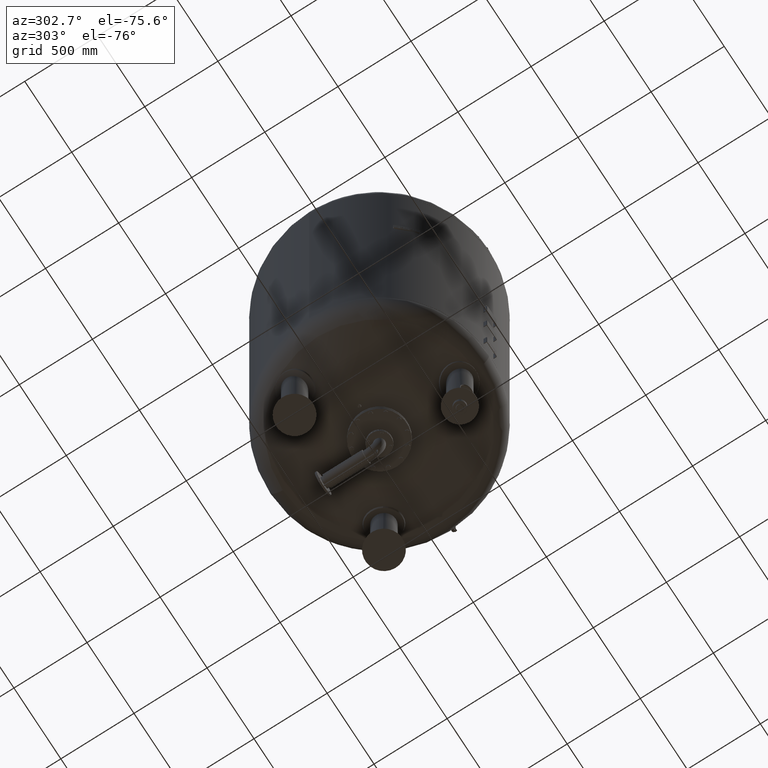
[diagram: clean part render]
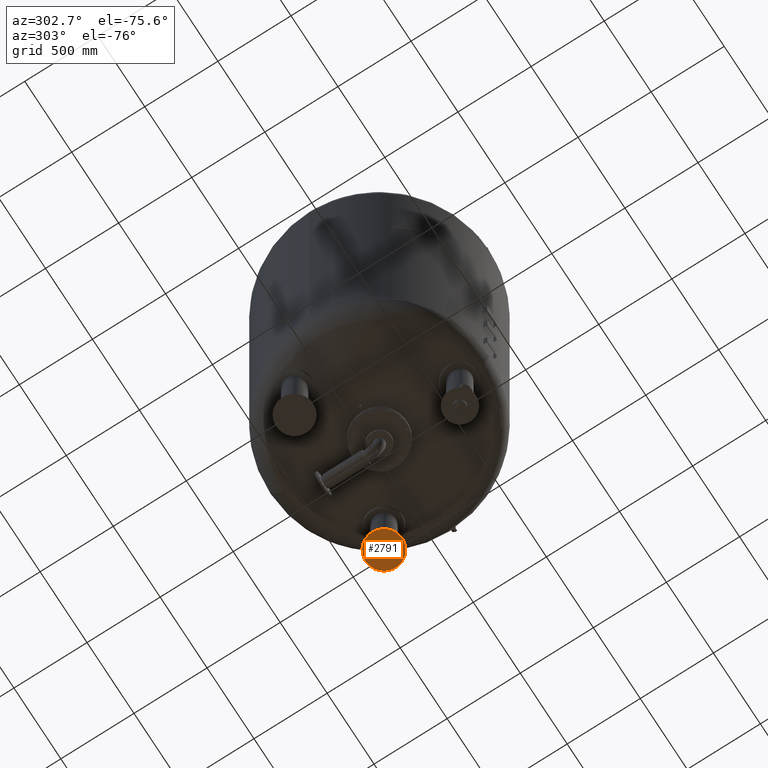
[diagram: same view with one face highlighted and labeled with its STEP entity id]
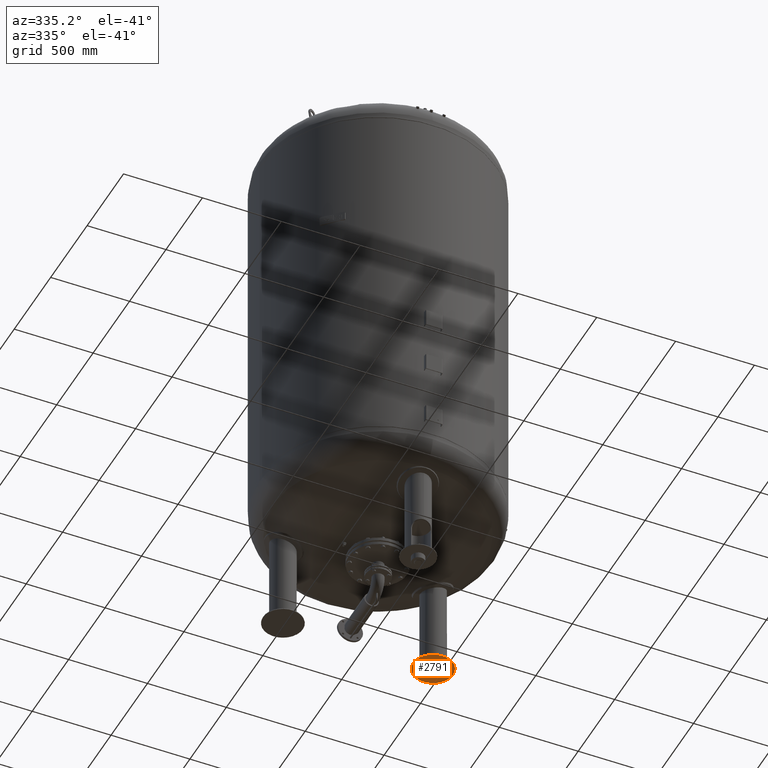
[diagram: same view with one face highlighted and labeled with its STEP entity id]
A machine part, auxiliary view. The second image highlights one B-rep face of the part: STEP entity #2791.
A second angle (auxiliary view) of the same face is appended — the face is thin or edge-on in the first view.
In plain terms, the highlighted spherical surface has radius 570 mm.
Its self-contained STEP definition (entity closure, byte-faithful):
#2279=CARTESIAN_POINT('',(585.702740850056100,338.155635094881400,14.171372612881115));
#2280=VERTEX_POINT('',#2279);
#2289=CARTESIAN_POINT('',(366.925203312826450,211.844364905118480,14.171372612881109));
#2290=VERTEX_POINT('',#2289);
#2291=CARTESIAN_POINT('',(476.313972081441250,274.999999999999940,14.171372612881115));
#2292=DIRECTION('',(0.0,0.0,-1.0));
#2293=DIRECTION('',(0.866025403784439,0.500000000000000,0.0));
#2294=AXIS2_PLACEMENT_3D('',#2291,#2292,#2293);
#2295=CIRCLE('',#2294,126.311270189762990);
#2296=EDGE_CURVE('',#2290,#2280,#2295,.T.);
#2772=CARTESIAN_POINT('',(476.313972081441250,274.999999999999940,14.171372612881115));
#2773=DIRECTION('',(0.0,0.0,-1.0));
#2774=DIRECTION('',(0.866025403784439,0.500000000000000,0.0));
#2775=AXIS2_PLACEMENT_3D('',#2772,#2773,#2774);
#2776=CIRCLE('',#2775,126.311270189762990);
#2777=EDGE_CURVE('',#2280,#2290,#2776,.T.);
#2782=CARTESIAN_POINT('',(476.313972081441310,274.999999999999830,570.0));
#2783=DIRECTION('',(0.500000000000000,-0.866025403784439,-1.836970E-016));
#2784=DIRECTION('',(0.866025403784439,0.500000000000000,0.0));
#2785=AXIS2_PLACEMENT_3D('',#2782,#2783,#2784);
#2786=SPHERICAL_SURFACE('',#2785,570.0);
#2787=ORIENTED_EDGE('',*,*,#2777,.T.);
#2788=ORIENTED_EDGE('',*,*,#2296,.T.);
#2789=EDGE_LOOP('',(#2787,#2788));
#2790=FACE_OUTER_BOUND('',#2789,.T.);
#2791=ADVANCED_FACE('',(#2790),#2786,.T.);